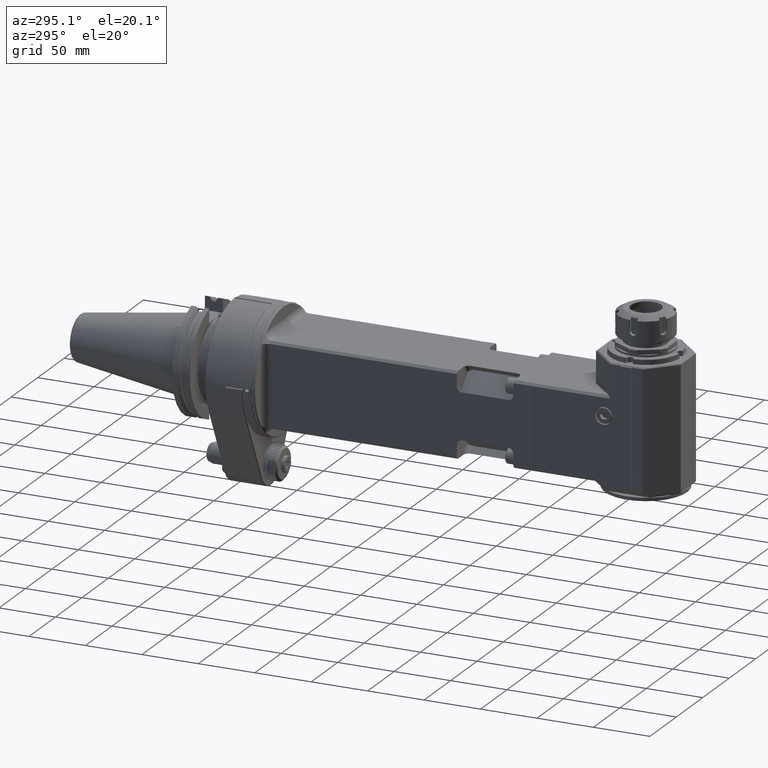
[diagram: clean part render]
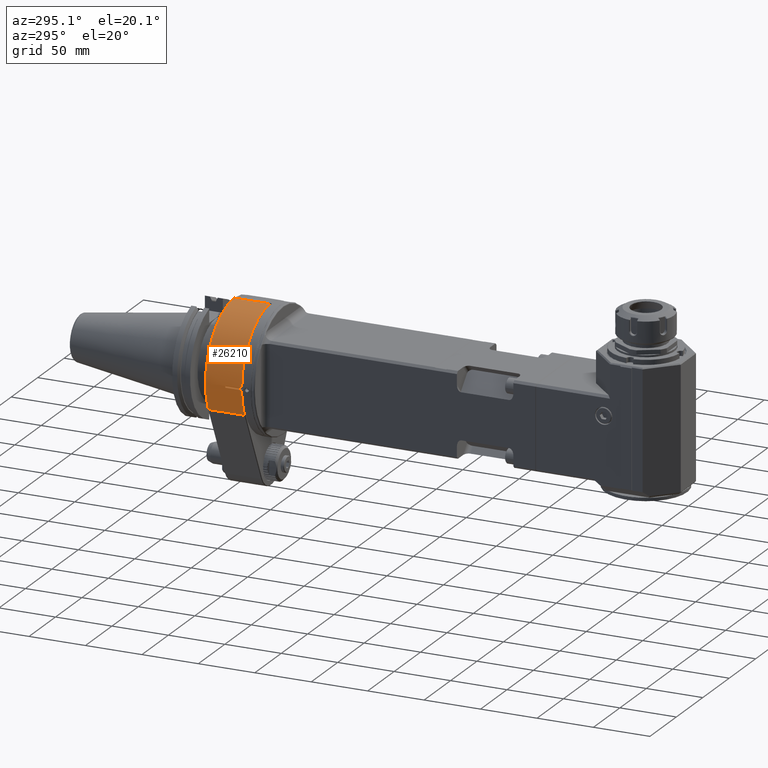
[diagram: same view with one face highlighted and labeled with its STEP entity id]
A machine part, auxiliary view. The second image highlights one B-rep face of the part: STEP entity #26210.
In plain terms, the highlighted cylindrical surface (partial cylindrical patch) has radius 55 mm, axis along (0, 1, 0).
Its self-contained STEP definition (entity closure, byte-faithful):
#3041=LINE('',#52128,#5126);
#3043=LINE('',#52135,#5128);
#3070=LINE('',#52259,#5155);
#3071=LINE('',#52272,#5156);
#5126=VECTOR('',#34293,14.49978943494);
#5128=VECTOR('',#34301,14.49978934979);
#5155=VECTOR('',#34398,10.);
#5156=VECTOR('',#34411,31.99973945275);
#5797=CYLINDRICAL_SURFACE('',#28516,55.);
#7153=FACE_OUTER_BOUND('',#8771,.T.);
#8771=EDGE_LOOP('',(#22504,#22505,#22506,#22507,#22508,#22509,#22510,#22511));
#9888=CIRCLE('',#28475,55.);
#9890=CIRCLE('',#28479,55.);
#9909=CIRCLE('',#28515,55.);
#9910=CIRCLE('',#28517,55.);
#12241=VERTEX_POINT('',#52122);
#12243=VERTEX_POINT('',#52126);
#12244=VERTEX_POINT('',#52130);
#12245=VERTEX_POINT('',#52134);
#12246=VERTEX_POINT('',#52138);
#12282=VERTEX_POINT('',#52254);
#12283=VERTEX_POINT('',#52258);
#12286=VERTEX_POINT('',#52270);
#15751=EDGE_CURVE('',#12243,#12241,#3041,.T.);
#15752=EDGE_CURVE('',#12241,#12244,#9888,.T.);
#15754=EDGE_CURVE('',#12244,#12245,#3043,.T.);
#15756=EDGE_CURVE('',#12246,#12245,#9890,.T.);
#15808=EDGE_CURVE('',#12282,#12283,#3070,.T.);
#15812=EDGE_CURVE('',#12243,#12283,#9909,.T.);
#15813=EDGE_CURVE('',#12282,#12286,#9910,.T.);
#15814=EDGE_CURVE('',#12246,#12286,#3071,.T.);
#22504=ORIENTED_EDGE('',*,*,#15752,.F.);
#22505=ORIENTED_EDGE('',*,*,#15751,.F.);
#22506=ORIENTED_EDGE('',*,*,#15812,.T.);
#22507=ORIENTED_EDGE('',*,*,#15808,.F.);
#22508=ORIENTED_EDGE('',*,*,#15813,.T.);
#22509=ORIENTED_EDGE('',*,*,#15814,.F.);
#22510=ORIENTED_EDGE('',*,*,#15756,.T.);
#22511=ORIENTED_EDGE('',*,*,#15754,.F.);
#26210=ADVANCED_FACE('',(#7153),#5797,.T.);
#28475=AXIS2_PLACEMENT_3D('',#52131,#34296,#34297);
#28479=AXIS2_PLACEMENT_3D('',#52139,#34306,#34307);
#28515=AXIS2_PLACEMENT_3D('',#52268,#34405,#34406);
#28516=AXIS2_PLACEMENT_3D('',#52269,#34407,#34408);
#28517=AXIS2_PLACEMENT_3D('',#52271,#34409,#34410);
#34293=DIRECTION('',(8.56637861799699E-10,0.999999999999999,4.75295641973499E-8));
#34296=DIRECTION('center_axis',(0.,-1.,0.));
#34297=DIRECTION('ref_axis',(-0.999837636446488,0.,0.0180194546282498));
#34301=DIRECTION('',(-9.07759464180499E-10,-0.999999999999999,5.03668325930399E-8));
#34306=DIRECTION('center_axis',(0.,1.,0.));
#34307=DIRECTION('ref_axis',(-0.899218410359521,0.,-0.43750000053771));
#34398=DIRECTION('',(0.,-1.,0.));
#34405=DIRECTION('center_axis',(0.,1.,0.));
#34406=DIRECTION('ref_axis',(-0.999837636446487,0.,0.0180194546283098));
#34407=DIRECTION('center_axis',(0.,1.,0.));
#34408=DIRECTION('ref_axis',(-0.851387512030188,0.,0.524537228763647));
#34409=DIRECTION('center_axis',(0.,-1.,0.));
#34410=DIRECTION('ref_axis',(-0.0136363636363499,0.,0.999907020470792));
#34411=DIRECTION('',(5.768077461949E-11,1.,-1.167938596251E-10));
#52122=CARTESIAN_POINT('',(-54.99107000456,15.,0.9910700045563));
#52126=CARTESIAN_POINT('',(-54.991070090994,0.500209248316411,0.991069075922385));
#52128=CARTESIAN_POINT('',(-54.99107001698,0.5002105650572,0.9910693153876));
#52130=CARTESIAN_POINT('',(-54.99107000456,15.,-0.9910700045573));
#52131=CARTESIAN_POINT('Origin',(0.,15.,0.));
#52134=CARTESIAN_POINT('',(-54.9910700961689,0.500209254661559,-0.991069020445104));
#52135=CARTESIAN_POINT('',(-54.99107000456,15.,-0.9910700045573));
#52138=CARTESIAN_POINT('',(-49.4570126851416,0.500104879983724,-24.0625000849106));
#52139=CARTESIAN_POINT('Origin',(8.073541935074E-13,0.5002091422822,-3.819167104711E-13));
#52254=CARTESIAN_POINT('',(-0.750000000009452,32.4997245197308,54.9948861254034));
#52258=CARTESIAN_POINT('',(-0.7500000000079,0.500209141297761,54.9948861254829));
#52259=CARTESIAN_POINT('',(-0.75,0.,54.9948861258936));
#52268=CARTESIAN_POINT('Origin',(8.073541935074E-13,0.5002091422818,-3.819167104711E-13));
#52269=CARTESIAN_POINT('Origin',(0.,0.,0.));
#52270=CARTESIAN_POINT('',(-49.457012697233,32.4998619131206,-24.0625000954287));
#52271=CARTESIAN_POINT('Origin',(-8.206768498029E-13,32.49972451855,2.84217194304E-14));
#52272=CARTESIAN_POINT('',(-49.45701257004,0.5001131670995,-24.06250002891));